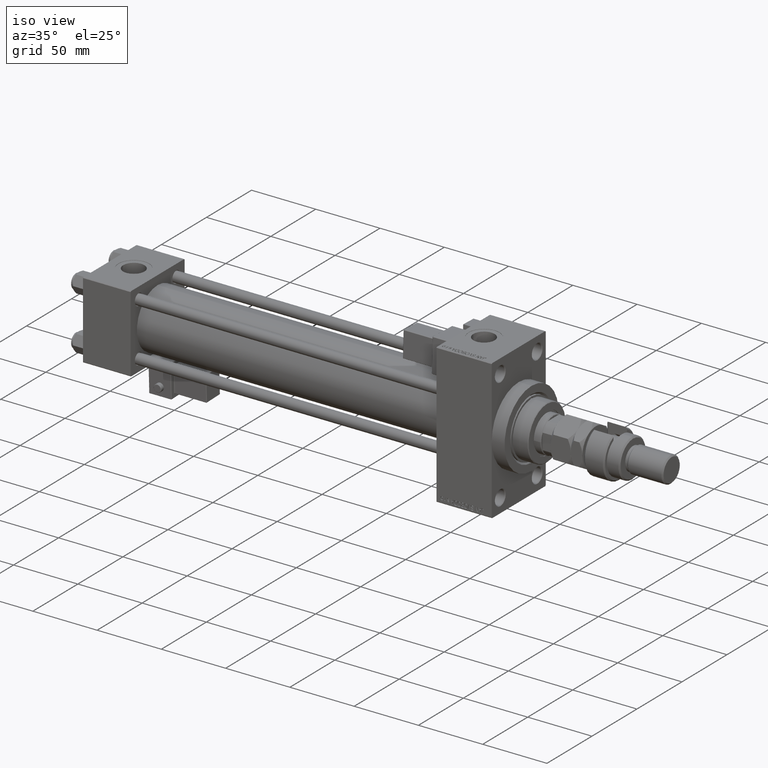
[diagram: clean part render]
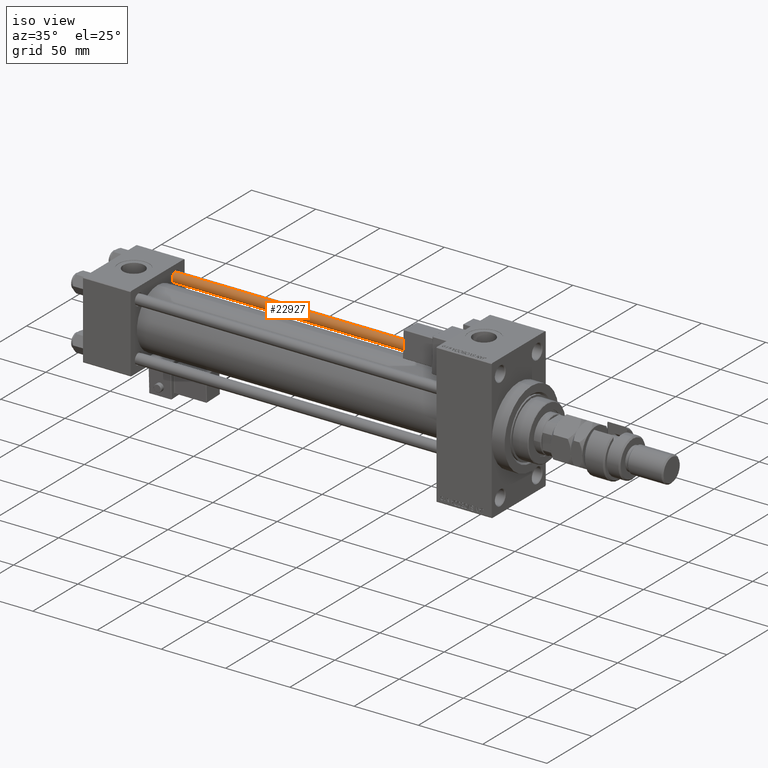
[diagram: same view with one face highlighted and labeled with its STEP entity id]
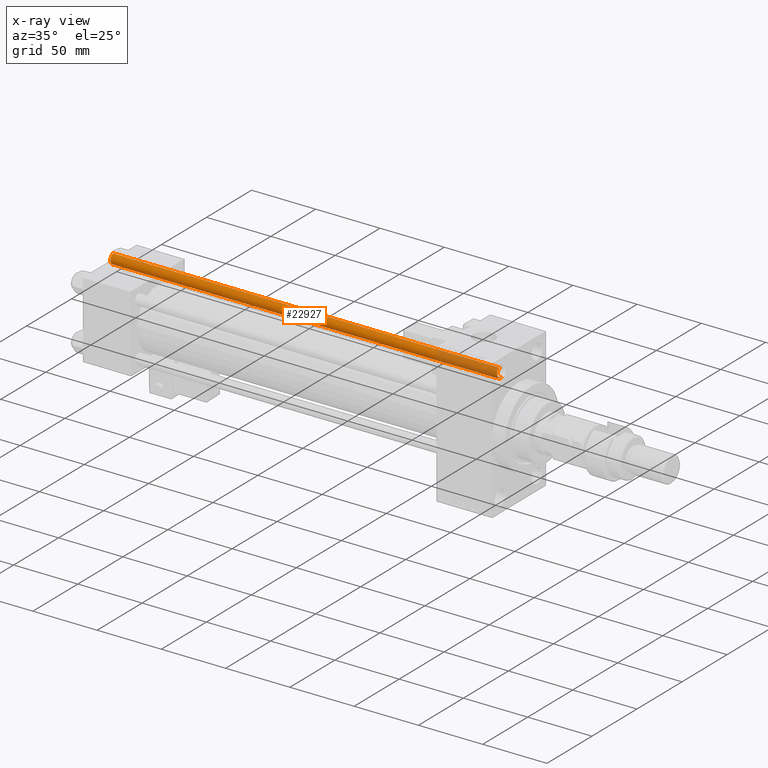
[diagram: x-ray of the same camera — body ghosted, the highlighted face saturated]
A machine part, iso view. The second image highlights one B-rep face of the part: STEP entity #22927.
The next image is the same camera in x-ray: the body ghosted, the highlighted face saturated — about 15% of this face is hidden behind the body in this view.
In plain terms, the highlighted cylindrical surface (edge-blend (fillet) strip) has radius 4 mm, axis along (-1, -0, 0).
Its self-contained STEP definition (entity closure, byte-faithful):
#1426 = CIRCLE ( 'NONE', #51463, 4.000000000000000000 ) ;
#2808 = EDGE_CURVE ( 'NONE', #15546, #3653, #20802, .T. ) ;
#3653 = VERTEX_POINT ( 'NONE', #37544 ) ;
#4148 = ORIENTED_EDGE ( 'NONE', *, *, #20820, .T. ) ;
#5104 = ORIENTED_EDGE ( 'NONE', *, *, #2808, .F. ) ;
#7051 = DIRECTION ( 'NONE',  ( -0.000000000000000000, -0.000000000000000000, -1.000000000000000000 ) ) ;
#7733 = DIRECTION ( 'NONE',  ( -0.000000000000000000, -0.000000000000000000, -1.000000000000000000 ) ) ;
#7785 = ORIENTED_EDGE ( 'NONE', *, *, #14094, .T. ) ;
#7859 = VECTOR ( 'NONE', #17078, 1000.000000000000000 ) ;
#11042 = LINE ( 'NONE', #34965, #44372 ) ;
#11936 = DIRECTION ( 'NONE',  ( 1.000000000000000000, 0.000000000000000000, 0.000000000000000000 ) ) ;
#13947 = CARTESIAN_POINT ( 'NONE',  ( 0.000000000000000000, 0.000000000000000000, 301.4999999999999432 ) ) ;
#14094 = EDGE_CURVE ( 'NONE', #15546, #35783, #1426, .T. ) ;
#15546 = VERTEX_POINT ( 'NONE', #31055 ) ;
#17017 = CYLINDRICAL_SURFACE ( 'NONE', #24903, 4.000000000000000000 ) ;
#17078 = DIRECTION ( 'NONE',  ( -0.000000000000000000, -0.000000000000000000, -1.000000000000000000 ) ) ;
#18208 = DIRECTION ( 'NONE',  ( 0.000000000000000000, 0.000000000000000000, -1.000000000000000000 ) ) ;
#20802 = LINE ( 'NONE', #25322, #7859 ) ;
#20820 = EDGE_CURVE ( 'NONE', #35783, #50579, #11042, .T. ) ;
#22927 = ADVANCED_FACE ( 'NONE', ( #41203 ), #17017, .T. ) ;
#24903 = AXIS2_PLACEMENT_3D ( 'NONE', #44158, #7733, #48660 ) ;
#25322 = CARTESIAN_POINT ( 'NONE',  ( 4.000000000000000000, 4.898587196589412829E-16, 302.0000000000000000 ) ) ;
#25980 = CARTESIAN_POINT ( 'NONE',  ( -4.000000000000000000, 0.000000000000000000, 301.4999999999999432 ) ) ;
#26604 = ORIENTED_EDGE ( 'NONE', *, *, #29406, .T. ) ;
#29406 = EDGE_CURVE ( 'NONE', #50579, #3653, #47123, .T. ) ;
#31055 = CARTESIAN_POINT ( 'NONE',  ( 4.000000000000000000, 4.898587196589412829E-16, 301.4999999999999432 ) ) ;
#31867 = CARTESIAN_POINT ( 'NONE',  ( 0.000000000000000000, 0.000000000000000000, 0.5000000000000559552 ) ) ;
#34965 = CARTESIAN_POINT ( 'NONE',  ( -4.000000000000000000, 0.000000000000000000, 302.0000000000000000 ) ) ;
#35014 = CARTESIAN_POINT ( 'NONE',  ( -4.000000000000000000, 0.000000000000000000, 0.5000000000000559552 ) ) ;
#35783 = VERTEX_POINT ( 'NONE', #25980 ) ;
#37544 = CARTESIAN_POINT ( 'NONE',  ( 4.000000000000000000, 4.898587196589412829E-16, 0.5000000000000559552 ) ) ;
#37844 = EDGE_LOOP ( 'NONE', ( #5104, #7785, #4148, #26604 ) ) ;
#41203 = FACE_OUTER_BOUND ( 'NONE', #37844, .T. ) ;
#43715 = AXIS2_PLACEMENT_3D ( 'NONE', #31867, #52065, #11936 ) ;
#44158 = CARTESIAN_POINT ( 'NONE',  ( 0.000000000000000000, 0.000000000000000000, 302.0000000000000000 ) ) ;
#44372 = VECTOR ( 'NONE', #7051, 1000.000000000000000 ) ;
#46399 = DIRECTION ( 'NONE',  ( 1.000000000000000000, 0.000000000000000000, 0.000000000000000000 ) ) ;
#47123 = CIRCLE ( 'NONE', #43715, 4.000000000000000000 ) ;
#48660 = DIRECTION ( 'NONE',  ( -1.000000000000000000, 0.000000000000000000, 0.000000000000000000 ) ) ;
#50579 = VERTEX_POINT ( 'NONE', #35014 ) ;
#51463 = AXIS2_PLACEMENT_3D ( 'NONE', #13947, #18208, #46399 ) ;
#52065 = DIRECTION ( 'NONE',  ( -0.000000000000000000, -0.000000000000000000, 1.000000000000000000 ) ) ;